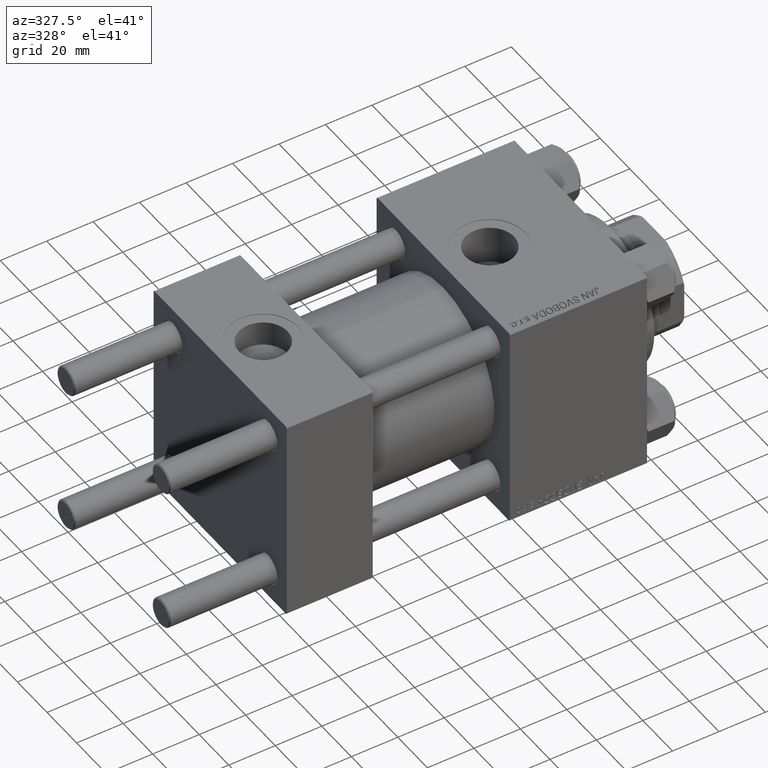
[diagram: clean part render]
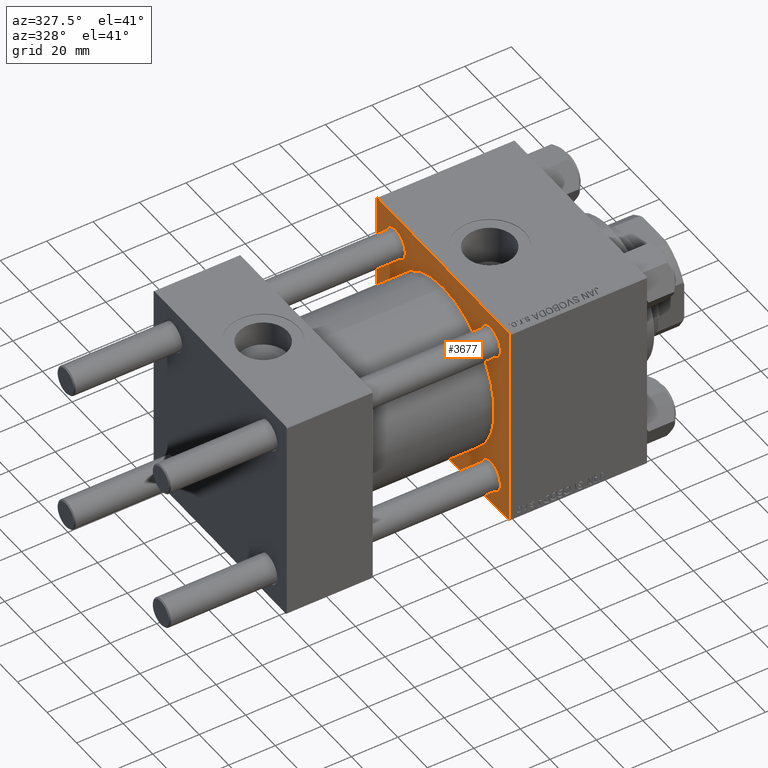
[diagram: same view with one face highlighted and labeled with its STEP entity id]
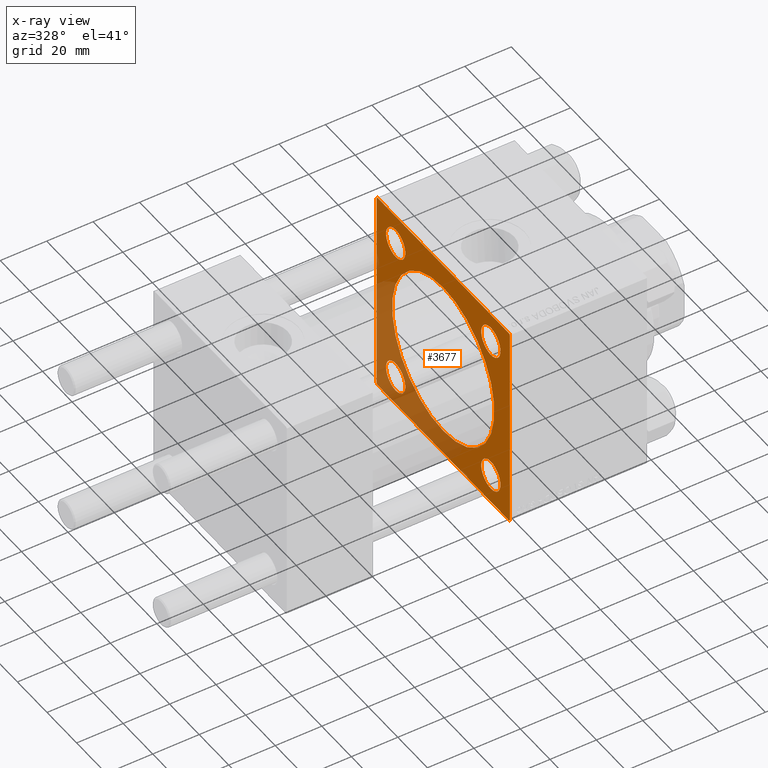
[diagram: x-ray of the same camera — body ghosted, the highlighted face saturated]
A machine part, auxiliary view. The second image highlights one B-rep face of the part: STEP entity #3677.
The next image is the same camera in x-ray: the body ghosted, the highlighted face saturated — about 31% of this face is hidden behind the body in this view.
In plain terms, the highlighted planar face has unit normal (-1, 0, 0).
Its self-contained STEP definition (entity closure, byte-faithful):
#61 = EDGE_CURVE ( 'NONE', #6256, #10870, #6487, .T. ) ;
#97 = VERTEX_POINT ( 'NONE', #37921 ) ;
#451 = DIRECTION ( 'NONE',  ( 1.000000000000000000, 0.000000000000000000, 0.000000000000000000 ) ) ;
#461 = DIRECTION ( 'NONE',  ( 1.000000000000000000, 0.000000000000000000, 0.000000000000000000 ) ) ;
#673 = DIRECTION ( 'NONE',  ( 0.000000000000000000, 0.000000000000000000, 1.000000000000000000 ) ) ;
#723 = LINE ( 'NONE', #34761, #37661 ) ;
#1067 = DIRECTION ( 'NONE',  ( 1.000000000000000000, 0.000000000000000000, 0.000000000000000000 ) ) ;
#1083 = CARTESIAN_POINT ( 'NONE',  ( 96.00000000000000000, 45.00000000000001421, 44.49999999999997158 ) ) ;
#1554 = CARTESIAN_POINT ( 'NONE',  ( 96.00000000000000000, 0.000000000000000000, 0.000000000000000000 ) ) ;
#2274 = VECTOR ( 'NONE', #41986, 1000.000000000000114 ) ;
#2389 = EDGE_LOOP ( 'NONE', ( #46265, #24154 ) ) ;
#2445 = VERTEX_POINT ( 'NONE', #14919 ) ;
#2446 = DIRECTION ( 'NONE',  ( 0.000000000000000000, 0.000000000000000000, 1.000000000000000000 ) ) ;
#2469 = VERTEX_POINT ( 'NONE', #17301 ) ;
#3289 = DIRECTION ( 'NONE',  ( 1.000000000000000000, 0.000000000000000000, 0.000000000000000000 ) ) ;
#3677 = ADVANCED_FACE ( 'NONE', ( #25254, #17675, #33049, #48428, #9116, #5329 ), #20721, .T. ) ;
#3749 = DIRECTION ( 'NONE',  ( 0.000000000000000000, 0.000000000000000000, 1.000000000000000000 ) ) ;
#4226 = ORIENTED_EDGE ( 'NONE', *, *, #32710, .T. ) ;
#4281 = AXIS2_PLACEMENT_3D ( 'NONE', #34786, #3289, #15138 ) ;
#4327 = DIRECTION ( 'NONE',  ( 1.000000000000000000, 0.000000000000000000, 0.000000000000000000 ) ) ;
#4749 = EDGE_CURVE ( 'NONE', #28633, #28755, #11292, .T. ) ;
#5220 = CIRCLE ( 'NONE', #49465, 6.500000000000033751 ) ;
#5329 = FACE_OUTER_BOUND ( 'NONE', #7384, .T. ) ;
#6256 = VERTEX_POINT ( 'NONE', #16312 ) ;
#6257 = CIRCLE ( 'NONE', #40860, 6.500000000000033751 ) ;
#6487 = CIRCLE ( 'NONE', #12937, 6.500000000000033751 ) ;
#6627 = CARTESIAN_POINT ( 'NONE',  ( 96.00000000000000000, 44.50000000000001421, -45.00000000000000000 ) ) ;
#6696 = DIRECTION ( 'NONE',  ( 1.000000000000000000, 0.000000000000000000, 0.000000000000000000 ) ) ;
#6799 = EDGE_CURVE ( 'NONE', #97, #45723, #26027, .T. ) ;
#7144 = VERTEX_POINT ( 'NONE', #31929 ) ;
#7327 = ORIENTED_EDGE ( 'NONE', *, *, #20294, .T. ) ;
#7335 = ORIENTED_EDGE ( 'NONE', *, *, #45319, .T. ) ;
#7384 = EDGE_LOOP ( 'NONE', ( #7401, #7335, #16122, #19678, #31248, #26196, #11114, #7327 ) ) ;
#7401 = ORIENTED_EDGE ( 'NONE', *, *, #4749, .T. ) ;
#8274 = DIRECTION ( 'NONE',  ( 0.000000000000000000, 0.000000000000000000, 1.000000000000000000 ) ) ;
#8641 = DIRECTION ( 'NONE',  ( 0.000000000000000000, 0.000000000000000000, -1.000000000000000000 ) ) ;
#8709 = AXIS2_PLACEMENT_3D ( 'NONE', #13797, #36241, #2446 ) ;
#8891 = VERTEX_POINT ( 'NONE', #15924 ) ;
#9116 = FACE_BOUND ( 'NONE', #26145, .T. ) ;
#9292 = DIRECTION ( 'NONE',  ( 0.000000000000000000, 7.709882115452478166E-17, -1.000000000000000000 ) ) ;
#9718 = LINE ( 'NONE', #25101, #33119 ) ;
#10230 = ORIENTED_EDGE ( 'NONE', *, *, #44777, .T. ) ;
#10870 = VERTEX_POINT ( 'NONE', #27389 ) ;
#11114 = ORIENTED_EDGE ( 'NONE', *, *, #21627, .T. ) ;
#11292 = LINE ( 'NONE', #30198, #37254 ) ;
#11334 = EDGE_LOOP ( 'NONE', ( #37873, #4226 ) ) ;
#11636 = CARTESIAN_POINT ( 'NONE',  ( 96.00000000000000000, -44.99999999999999289, -44.49999999999991473 ) ) ;
#11810 = CARTESIAN_POINT ( 'NONE',  ( 96.00000000000000000, -32.14999999999997726, -32.15000000000001279 ) ) ;
#11864 = VERTEX_POINT ( 'NONE', #35505 ) ;
#11930 = EDGE_LOOP ( 'NONE', ( #22649, #28146 ) ) ;
#12425 = EDGE_CURVE ( 'NONE', #2469, #11864, #14194, .T. ) ;
#12871 = ORIENTED_EDGE ( 'NONE', *, *, #6799, .T. ) ;
#12937 = AXIS2_PLACEMENT_3D ( 'NONE', #15495, #18274, #26105 ) ;
#13370 = EDGE_CURVE ( 'NONE', #10870, #6256, #5220, .T. ) ;
#13464 = CIRCLE ( 'NONE', #33555, 6.500000000000033751 ) ;
#13537 = EDGE_CURVE ( 'NONE', #17157, #8891, #15657, .T. ) ;
#13797 = CARTESIAN_POINT ( 'NONE',  ( 96.00000000000000000, -32.14999999999997726, -32.15000000000001279 ) ) ;
#13823 = CARTESIAN_POINT ( 'NONE',  ( 96.00000000000000000, -45.00000000000000000, 44.99999999999998579 ) ) ;
#14194 = LINE ( 'NONE', #37128, #19654 ) ;
#14508 = DIRECTION ( 'NONE',  ( 0.000000000000000000, 0.000000000000000000, 1.000000000000000000 ) ) ;
#14655 = CARTESIAN_POINT ( 'NONE',  ( 96.00000000000000000, 4.225031457058367344E-15, -34.49999999999999289 ) ) ;
#14919 = CARTESIAN_POINT ( 'NONE',  ( 96.00000000000000000, -32.14999999999997726, -38.65000000000004832 ) ) ;
#15138 = DIRECTION ( 'NONE',  ( 0.000000000000000000, 0.000000000000000000, -1.000000000000000000 ) ) ;
#15495 = CARTESIAN_POINT ( 'NONE',  ( 96.00000000000000000, 32.14999999999999147, -32.15000000000000568 ) ) ;
#15657 = CIRCLE ( 'NONE', #46276, 6.500000000000033751 ) ;
#15924 = CARTESIAN_POINT ( 'NONE',  ( 96.00000000000000000, -32.14999999999997726, 25.64999999999997726 ) ) ;
#16122 = ORIENTED_EDGE ( 'NONE', *, *, #42597, .F. ) ;
#16151 = CARTESIAN_POINT ( 'NONE',  ( 96.00000000000000000, 32.14999999999999147, 25.64999999999997016 ) ) ;
#16312 = CARTESIAN_POINT ( 'NONE',  ( 96.00000000000000000, 32.14999999999999147, -25.64999999999997016 ) ) ;
#16325 = DIRECTION ( 'NONE',  ( 0.000000000000000000, 0.7071067811865474617, -0.7071067811865474617 ) ) ;
#16929 = DIRECTION ( 'NONE',  ( -1.000000000000000000, 0.000000000000000000, -0.000000000000000000 ) ) ;
#17157 = VERTEX_POINT ( 'NONE', #43775 ) ;
#17229 = EDGE_CURVE ( 'NONE', #40585, #39758, #21435, .T. ) ;
#17301 = CARTESIAN_POINT ( 'NONE',  ( 96.00000000000000000, 44.49999999999998579, 45.00000000000000000 ) ) ;
#17675 = FACE_BOUND ( 'NONE', #2389, .T. ) ;
#18046 = CARTESIAN_POINT ( 'NONE',  ( 96.00000000000000000, 32.14999999999999147, -32.15000000000000568 ) ) ;
#18274 = DIRECTION ( 'NONE',  ( 1.000000000000000000, 0.000000000000000000, 0.000000000000000000 ) ) ;
#18443 = LINE ( 'NONE', #48705, #45648 ) ;
#19548 = CARTESIAN_POINT ( 'NONE',  ( 96.00000000000000000, 45.00000000000001421, -44.49999999999997158 ) ) ;
#19654 = VECTOR ( 'NONE', #33348, 1000.000000000000000 ) ;
#19678 = ORIENTED_EDGE ( 'NONE', *, *, #26798, .T. ) ;
#19809 = CARTESIAN_POINT ( 'NONE',  ( 96.00000000000000000, -44.74999999999997158, 44.74999999999997158 ) ) ;
#20227 = VERTEX_POINT ( 'NONE', #1083 ) ;
#20294 = EDGE_CURVE ( 'NONE', #22280, #28633, #18443, .T. ) ;
#20587 = EDGE_CURVE ( 'NONE', #39758, #40585, #39200, .T. ) ;
#20662 = CARTESIAN_POINT ( 'NONE',  ( 96.00000000000000000, -44.49999999999990052, -45.00000000000000000 ) ) ;
#20721 = PLANE ( 'NONE',  #42025 ) ;
#21435 = CIRCLE ( 'NONE', #35912, 6.500000000000033751 ) ;
#21627 = EDGE_CURVE ( 'NONE', #20227, #22280, #723, .T. ) ;
#22280 = VERTEX_POINT ( 'NONE', #19548 ) ;
#22578 = CARTESIAN_POINT ( 'NONE',  ( 96.00000000000000000, -32.14999999999997726, 32.15000000000001279 ) ) ;
#22649 = ORIENTED_EDGE ( 'NONE', *, *, #61, .T. ) ;
#22853 = EDGE_CURVE ( 'NONE', #2445, #7144, #32854, .T. ) ;
#23262 = DIRECTION ( 'NONE',  ( 0.000000000000000000, 0.000000000000000000, 1.000000000000000000 ) ) ;
#23283 = ORIENTED_EDGE ( 'NONE', *, *, #23880, .T. ) ;
#23357 = LINE ( 'NONE', #19809, #2274 ) ;
#23636 = CARTESIAN_POINT ( 'NONE',  ( 96.00000000000000000, 32.14999999999999147, 32.15000000000000568 ) ) ;
#23880 = EDGE_CURVE ( 'NONE', #7144, #2445, #13464, .T. ) ;
#24154 = ORIENTED_EDGE ( 'NONE', *, *, #17229, .T. ) ;
#24915 = CARTESIAN_POINT ( 'NONE',  ( 96.00000000000000000, 44.74999999999998579, 44.74999999999998579 ) ) ;
#25101 = CARTESIAN_POINT ( 'NONE',  ( 96.00000000000000000, -44.74999999999965183, -44.75000000000027001 ) ) ;
#25254 = FACE_BOUND ( 'NONE', #11334, .T. ) ;
#26027 = CIRCLE ( 'NONE', #4281, 34.49999999999999289 ) ;
#26105 = DIRECTION ( 'NONE',  ( 0.000000000000000000, 0.000000000000000000, 1.000000000000000000 ) ) ;
#26145 = EDGE_LOOP ( 'NONE', ( #12871, #10230 ) ) ;
#26196 = ORIENTED_EDGE ( 'NONE', *, *, #38764, .T. ) ;
#26670 = DIRECTION ( 'NONE',  ( 0.000000000000000000, -1.000000000000000000, 0.000000000000000000 ) ) ;
#26781 = CARTESIAN_POINT ( 'NONE',  ( 96.00000000000000000, -32.14999999999997726, 32.15000000000001279 ) ) ;
#26798 = EDGE_CURVE ( 'NONE', #38434, #11864, #23357, .T. ) ;
#27389 = CARTESIAN_POINT ( 'NONE',  ( 96.00000000000000000, 32.14999999999999147, -38.65000000000004121 ) ) ;
#28146 = ORIENTED_EDGE ( 'NONE', *, *, #13370, .T. ) ;
#28633 = VERTEX_POINT ( 'NONE', #6627 ) ;
#28755 = VERTEX_POINT ( 'NONE', #20662 ) ;
#28987 = CARTESIAN_POINT ( 'NONE',  ( 96.00000000000000000, -45.00000000000000000, 44.49999999999995737 ) ) ;
#30198 = CARTESIAN_POINT ( 'NONE',  ( 96.00000000000000000, 45.00000000000001421, -45.00000000000000000 ) ) ;
#30982 = DIRECTION ( 'NONE',  ( 0.000000000000000000, 0.000000000000000000, -1.000000000000000000 ) ) ;
#31248 = ORIENTED_EDGE ( 'NONE', *, *, #12425, .F. ) ;
#31929 = CARTESIAN_POINT ( 'NONE',  ( 96.00000000000000000, -32.14999999999997726, -25.64999999999997726 ) ) ;
#32147 = ORIENTED_EDGE ( 'NONE', *, *, #22853, .T. ) ;
#32214 = VECTOR ( 'NONE', #9292, 1000.000000000000000 ) ;
#32298 = DIRECTION ( 'NONE',  ( -0.000000000000000000, 0.000000000000000000, 1.000000000000000000 ) ) ;
#32710 = EDGE_CURVE ( 'NONE', #8891, #17157, #6257, .T. ) ;
#32854 = CIRCLE ( 'NONE', #8709, 6.500000000000033751 ) ;
#33049 = FACE_BOUND ( 'NONE', #11930, .T. ) ;
#33119 = VECTOR ( 'NONE', #40459, 1000.000000000000000 ) ;
#33348 = DIRECTION ( 'NONE',  ( 0.000000000000000000, -1.000000000000000000, -1.541976423090495140E-16 ) ) ;
#33555 = AXIS2_PLACEMENT_3D ( 'NONE', #11810, #451, #8274 ) ;
#34761 = CARTESIAN_POINT ( 'NONE',  ( 96.00000000000000000, 45.00000000000001421, 45.00000000000000000 ) ) ;
#34786 = CARTESIAN_POINT ( 'NONE',  ( 96.00000000000000000, 0.000000000000000000, 0.000000000000000000 ) ) ;
#35505 = CARTESIAN_POINT ( 'NONE',  ( 96.00000000000000000, -44.49999999999994316, 44.99999999999998579 ) ) ;
#35912 = AXIS2_PLACEMENT_3D ( 'NONE', #23636, #38977, #673 ) ;
#35984 = LINE ( 'NONE', #24915, #49774 ) ;
#36241 = DIRECTION ( 'NONE',  ( 1.000000000000000000, 0.000000000000000000, 0.000000000000000000 ) ) ;
#36995 = CARTESIAN_POINT ( 'NONE',  ( 96.00000000000000000, 32.14999999999999147, 38.65000000000004121 ) ) ;
#37128 = CARTESIAN_POINT ( 'NONE',  ( 96.00000000000000000, 45.00000000000001421, 45.00000000000000000 ) ) ;
#37254 = VECTOR ( 'NONE', #26670, 1000.000000000000000 ) ;
#37462 = EDGE_LOOP ( 'NONE', ( #23283, #32147 ) ) ;
#37661 = VECTOR ( 'NONE', #30982, 1000.000000000000000 ) ;
#37873 = ORIENTED_EDGE ( 'NONE', *, *, #13537, .T. ) ;
#37921 = CARTESIAN_POINT ( 'NONE',  ( 96.00000000000000000, 0.000000000000000000, 34.49999999999999289 ) ) ;
#37931 = DIRECTION ( 'NONE',  ( 0.000000000000000000, 0.000000000000000000, 1.000000000000000000 ) ) ;
#38276 = CARTESIAN_POINT ( 'NONE',  ( 96.00000000000000000, 32.14999999999999147, 32.15000000000000568 ) ) ;
#38434 = VERTEX_POINT ( 'NONE', #28987 ) ;
#38764 = EDGE_CURVE ( 'NONE', #2469, #20227, #35984, .T. ) ;
#38977 = DIRECTION ( 'NONE',  ( 1.000000000000000000, 0.000000000000000000, 0.000000000000000000 ) ) ;
#39200 = CIRCLE ( 'NONE', #40049, 6.500000000000033751 ) ;
#39758 = VERTEX_POINT ( 'NONE', #36995 ) ;
#40049 = AXIS2_PLACEMENT_3D ( 'NONE', #38276, #461, #3749 ) ;
#40357 = CIRCLE ( 'NONE', #44390, 34.49999999999999289 ) ;
#40459 = DIRECTION ( 'NONE',  ( 0.000000000000000000, -0.7071067811865524577, 0.7071067811865426878 ) ) ;
#40585 = VERTEX_POINT ( 'NONE', #16151 ) ;
#40860 = AXIS2_PLACEMENT_3D ( 'NONE', #26781, #4327, #23262 ) ;
#41620 = DIRECTION ( 'NONE',  ( -0.000000000000000000, -0.7071067811865474617, -0.7071067811865474617 ) ) ;
#41986 = DIRECTION ( 'NONE',  ( -0.000000000000000000, 0.7071067811865474617, 0.7071067811865474617 ) ) ;
#42025 = AXIS2_PLACEMENT_3D ( 'NONE', #1554, #16929, #32298 ) ;
#42597 = EDGE_CURVE ( 'NONE', #38434, #46545, #44572, .T. ) ;
#43164 = CARTESIAN_POINT ( 'NONE',  ( 96.00000000000000000, 0.000000000000000000, 0.000000000000000000 ) ) ;
#43775 = CARTESIAN_POINT ( 'NONE',  ( 96.00000000000000000, -32.14999999999997726, 38.65000000000004832 ) ) ;
#44390 = AXIS2_PLACEMENT_3D ( 'NONE', #43164, #1067, #8641 ) ;
#44572 = LINE ( 'NONE', #13823, #32214 ) ;
#44777 = EDGE_CURVE ( 'NONE', #45723, #97, #40357, .T. ) ;
#45319 = EDGE_CURVE ( 'NONE', #28755, #46545, #9718, .T. ) ;
#45648 = VECTOR ( 'NONE', #41620, 1000.000000000000114 ) ;
#45723 = VERTEX_POINT ( 'NONE', #14655 ) ;
#46265 = ORIENTED_EDGE ( 'NONE', *, *, #20587, .T. ) ;
#46276 = AXIS2_PLACEMENT_3D ( 'NONE', #22578, #49273, #37931 ) ;
#46545 = VERTEX_POINT ( 'NONE', #11636 ) ;
#48428 = FACE_BOUND ( 'NONE', #37462, .T. ) ;
#48705 = CARTESIAN_POINT ( 'NONE',  ( 96.00000000000000000, 44.75000000000000000, -44.75000000000000000 ) ) ;
#49273 = DIRECTION ( 'NONE',  ( 1.000000000000000000, 0.000000000000000000, 0.000000000000000000 ) ) ;
#49465 = AXIS2_PLACEMENT_3D ( 'NONE', #18046, #6696, #14508 ) ;
#49774 = VECTOR ( 'NONE', #16325, 1000.000000000000114 ) ;